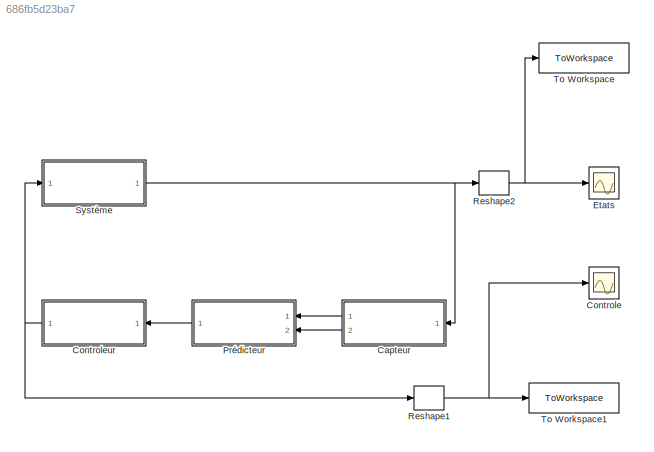
MODEL slx_686fb5d23ba7
KIND model
CONFIG AbsTol = auto
CONFIG EnableMultiTasking = off
CONFIG FixedStep = auto
CONFIG MaxStep = auto
CONFIG MinStep = auto
CONFIG RelTol = 1e-3
CONFIG SampleTimeConstraint = Unconstrained
CONFIG SolverName = VariableStepAuto
CONFIG StartTime = 0.0
CONFIG StopTime = 10
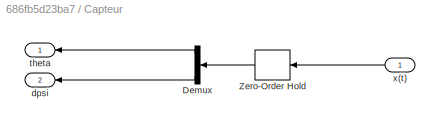
BLOCK [SubSystem] Capteur
  Ports = [1, 2]
  RequestExecContextInheritance = off
BLOCK [Demux] Capteur/Demux
  NameLocation = top
  Ports = [1, 4]
BLOCK [ZeroOrderHold] Capteur/Zero-Order Hold
  NameLocation = top
  SampleTime = -1
BLOCK [Outport] Capteur/dpsi
  NameLocation = top
  Port = 2
BLOCK [Outport] Capteur/theta
  NameLocation = top
BLOCK [Inport] Capteur/x(t)
  NameLocation = top
BLOCK [Scope] Controle
  Floating = off
  NumInputPorts = 1
  Ports = [1]
  ScopeSpecificationString = Simulink.scopes.TimeScopeBlockCfg('CurrentConfiguration', extmgr.ConfigurationSet(extmgr.Configuration('Core','General UI',true),extmgr.Configuration('Core','Source UI',true),extmgr.Configuration('Sources','WiredSimulink',true,'DataLoggingVariableName','ScopeData1'),extmgr.Configuration('Visuals','Time Domain',true,'SerializedDisplays',{struct('MinYLimReal','-2.62025','MaxYLimReal','9.05912','YLab...<+1392ch>
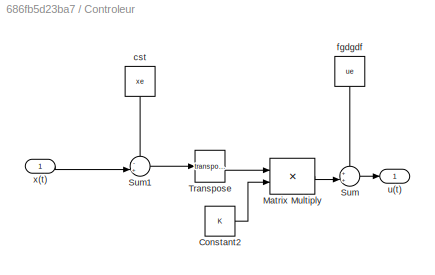
BLOCK [SubSystem] Controleur
  Ports = [1, 1]
  RequestExecContextInheritance = off
BLOCK [Constant] Controleur/Constant2
  Value = K
BLOCK [Product] Controleur/Matrix Multiply
  Multiplication = Matrix(*)
  Ports = [2, 1]
BLOCK [Sum] Controleur/Sum
  Inputs = ++|
  Ports = [2, 1]
BLOCK [Sum] Controleur/Sum1
  Inputs = -+|
  Ports = [2, 1]
BLOCK [Math] Controleur/Transpose
  Operator = transpose
  Ports = [1, 1]
BLOCK [Constant] Controleur/cst
  NameLocation = left
  Value = xe
BLOCK [Constant] Controleur/fgdgdf
  NameLocation = left
  Value = ue
BLOCK [Outport] Controleur/u(t)
BLOCK [Inport] Controleur/x(t)
BLOCK [Scope] Etats
  Floating = off
  NumInputPorts = 1
  Ports = [1]
  ScopeSpecificationString = Simulink.scopes.TimeScopeBlockCfg('CurrentConfiguration', extmgr.ConfigurationSet(extmgr.Configuration('Core','General UI',true),extmgr.Configuration('Core','Source UI',true),extmgr.Configuration('Sources','WiredSimulink',true),extmgr.Configuration('Visuals','Time Domain',true,'SerializedDisplays',{struct('MinYLimReal','-6.41046','MaxYLimReal','13.18168','YLabelReal','','MinYLimMag','0.00000','Max...<+1423ch>
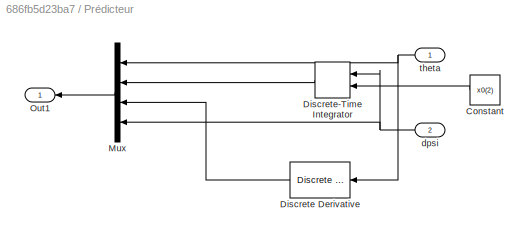
BLOCK [SubSystem] Prédicteur
  Ports = [2, 1]
  RequestExecContextInheritance = off
BLOCK [Constant] Prédicteur/Constant
  NameLocation = top
  Value = x0(2)
BLOCK [Reference] Prédicteur/Discrete Derivative  REF=simulink/Discrete/Discrete Derivative
  NameLocation = top
  Ports = [1, 1]
  SourceBlock = simulink/Discrete/Discrete Derivative
  SourceProductBaseCode = SL
  SourceType = Discrete Derivative
BLOCK [DiscreteIntegrator] Prédicteur/Discrete-Time Integrator
  ICPrevOutput = DiscIntNeverNeededParam
  ICPrevScaledInput = DiscIntNeverNeededParam
  InitialConditionSetting = Auto
  InitialConditionSource = external
  NameLocation = top
  Ports = [2, 1]
  SampleTime = -1
BLOCK [Mux] Prédicteur/Mux
  DisplayOption = bar
  NameLocation = top
  Ports = [4, 1]
BLOCK [Outport] Prédicteur/Out1
  NameLocation = top
BLOCK [Inport] Prédicteur/dpsi
  NameLocation = top
  Port = 2
BLOCK [Inport] Prédicteur/theta
  NameLocation = top
BLOCK [Reshape] Reshape1
  Ports = [1, 1]
BLOCK [Reshape] Reshape2
  Ports = [1, 1]
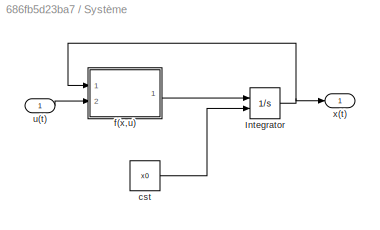
BLOCK [SubSystem] Système
  Ports = [1, 1]
  RequestExecContextInheritance = off
BLOCK [Integrator] Système/Integrator
  InitialConditionSource = external
  Ports = [2, 1]
BLOCK [Constant] Système/cst
  Value = x0
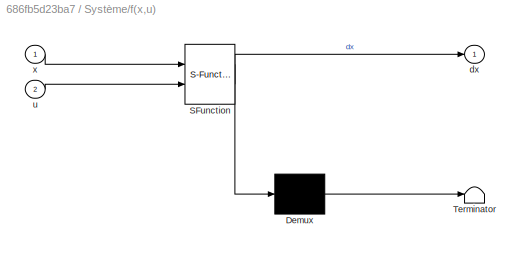
BLOCK [SubSystem] Système/f(x,u)
  ErrorFcn = Stateflow.Translate.translate
  PermitHierarchicalResolution = ExplicitOnly
  Ports = [2, 1]
  RequestExecContextInheritance = off
  SFBlockType = MATLAB Function
  TreatAsAtomicUnit = on
BLOCK [Demux] Système/f(x,u)/ Demux 
  Outputs = 1
  Ports = [1, 1]
BLOCK [S-Function] Système/f(x,u)/ SFunction 
  EnableBusSupport = on
  FunctionName = sf_sfun
  PortCounts = [2 2]
  Ports = [2, 2]
  SFcnIsStateOwnerBlock = off
  SFunctionDeploymentMode = off
  Tag = Stateflow S-Function 2
BLOCK [Terminator] Système/f(x,u)/ Terminator 
BLOCK [Outport] Système/f(x,u)/dx
BLOCK [Inport] Système/f(x,u)/u
  Port = 2
BLOCK [Inport] Système/f(x,u)/x
BLOCK [Inport] Système/u(t)
BLOCK [Outport] Système/x(t)
BLOCK [ToWorkspace] To Workspace
  FixptAsFi = on
  MaxDataPoints = inf
  Ports = [1]
  SampleTime = -1
  SaveFormat = Timeseries
  VariableName = X
BLOCK [ToWorkspace] To Workspace1
  FixptAsFi = on
  MaxDataPoints = inf
  Ports = [1]
  SampleTime = -1
  SaveFormat = Timeseries
  VariableName = U
LINE Capteur/Demux:1 -> Capteur/theta:1
LINE Capteur/Demux:4 -> Capteur/dpsi:1
LINE Capteur/Zero-Order Hold:1 -> Capteur/Demux:1
LINE Capteur/x(t):1 -> Capteur/Zero-Order Hold:1
LINE Capteur:1 -> Prédicteur:1
LINE Capteur:2 -> Prédicteur:2
LINE Controleur/Constant2:1 -> Controleur/Matrix Multiply:2
LINE Controleur/Matrix Multiply:1 -> Controleur/Sum:2
LINE Controleur/Sum1:1 -> Controleur/Transpose:1
LINE Controleur/Sum:1 -> Controleur/u(t):1
LINE Controleur/Transpose:1 -> Controleur/Matrix Multiply:1
LINE Controleur/cst:1 -> Controleur/Sum1:1
LINE Controleur/fgdgdf:1 -> Controleur/Sum:1
LINE Controleur/x(t):1 -> Controleur/Sum1:2
NET Controleur:1 -> Reshape1:1, Système:1
LINE Prédicteur/Constant:1 -> Prédicteur/Discrete-Time Integrator:2
LINE Prédicteur/Discrete Derivative:1 -> Prédicteur/Mux:3
LINE Prédicteur/Discrete-Time Integrator:1 -> Prédicteur/Mux:2
LINE Prédicteur/Mux:1 -> Prédicteur/Out1:1
NET Prédicteur/dpsi:1 -> Prédicteur/Discrete-Time Integrator:1, Prédicteur/Mux:4
NET Prédicteur/theta:1 -> Prédicteur/Discrete Derivative:1, Prédicteur/Mux:1
LINE Prédicteur:1 -> Controleur:1
NET Reshape1:1 -> Controle:1, To Workspace1:1
NET Reshape2:1 -> Etats:1, To Workspace:1
NET Système/Integrator:1 -> Système/f(x,u):1, Système/x(t):1
LINE Système/cst:1 -> Système/Integrator:2
LINE Système/f(x,u):1 -> Système/Integrator:1
LINE Système/u(t):1 -> Système/f(x,u):2
NET Système:1 -> Capteur:1, Reshape2:1
note: NET lines group one-source signal fan-out (src -> all destinations, sorted); 1:1 wires keep LINE
CHART Système/f(x,u) states=1 transitions=1
  STATE_LABEL 'eML_blk_kernel()'
  STATE_LABEL 'SCRIPT:\nfunction dx   = fonction( x, u)\n%   Dynamic equations of motion of the segway on an axis.\n%   Inputs: - x = [theta psi dtheta dpsi]\n%               theta: average angle of the wheels      [rad]\n%               psi: body pitch angle                   [rad]\n%               dtheta: average velocity of the wheels  [rad/s]\n%               dpsi: body pitch velocity               [rad/s]\n%       ...<+1496ch>'
CHART  states=0 transitions=0
